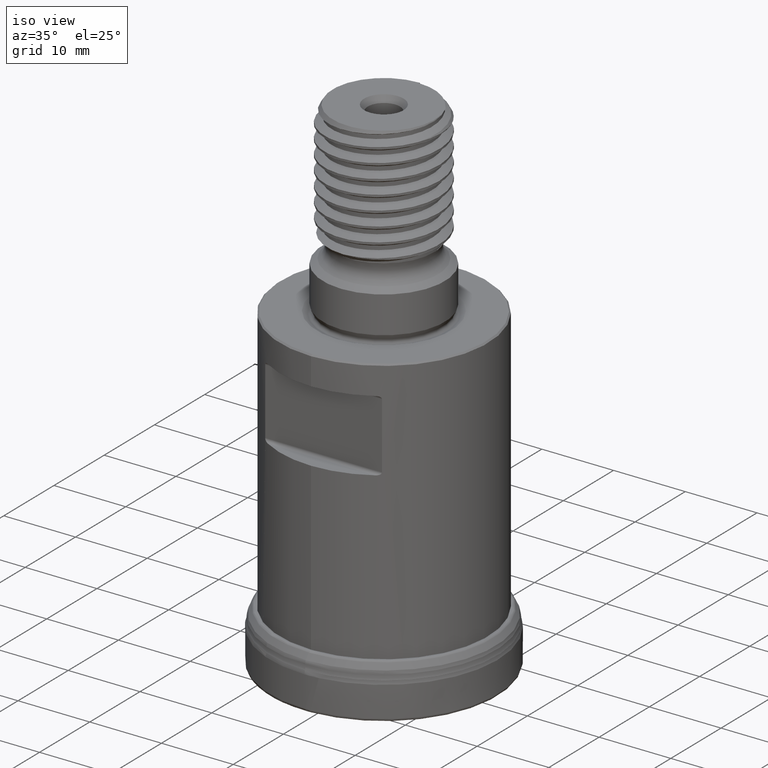
[diagram: clean part render]
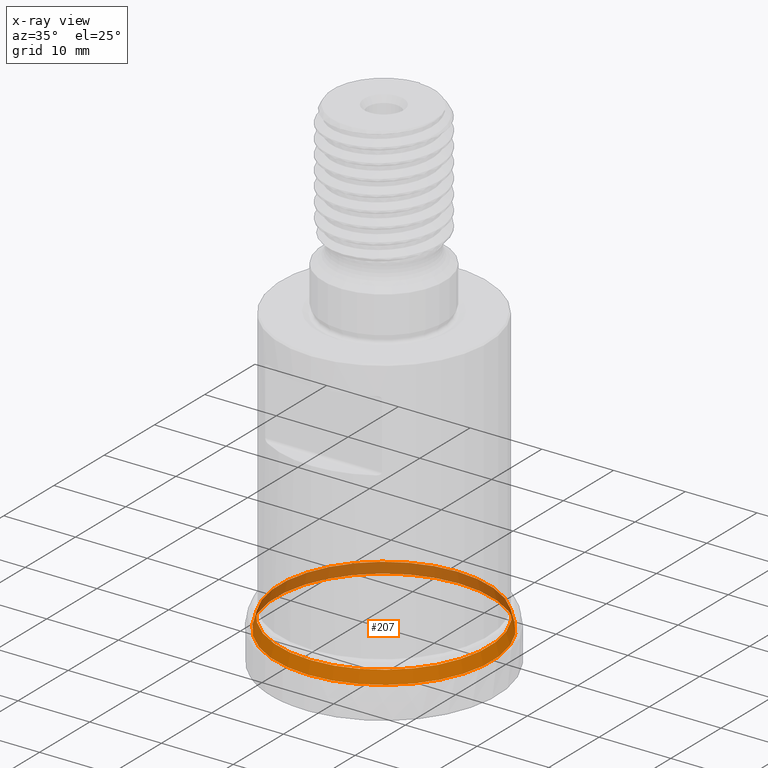
[diagram: x-ray — body ghosted, one internal face saturated and labeled with its STEP entity id]
A machine part, iso view, then the same camera in x-ray: the body is ghosted and one INTERNAL B-rep face — a face not visible from any outside direction — is saturated and labeled: STEP entity #207.
In plain terms, the highlighted conical surface has half-angle 15 deg.
Its self-contained STEP definition (entity closure, byte-faithful):
#181=CONICAL_SURFACE('',#993,14.5,15.);
#207=ADVANCED_FACE('',(#328,#329),#181,.T.);
#328=FACE_BOUND('',#422,.T.);
#329=FACE_BOUND('',#423,.T.);
#422=EDGE_LOOP('',(#545));
#423=EDGE_LOOP('',(#546));
#545=ORIENTED_EDGE('',*,*,#799,.T.);
#546=ORIENTED_EDGE('',*,*,#800,.T.);
#723=VERTEX_POINT('',#1702);
#724=VERTEX_POINT('',#1704);
#799=EDGE_CURVE('',#723,#723,#876,.T.);
#800=EDGE_CURVE('',#724,#724,#877,.T.);
#876=CIRCLE('',#991,14.6022225211328);
#877=CIRCLE('',#992,15.0569834767475);
#991=AXIS2_PLACEMENT_3D('',#1701,#1107,#1108);
#992=AXIS2_PLACEMENT_3D('',#1703,#1109,#1110);
#993=AXIS2_PLACEMENT_3D('',#1705,#1111,#1112);
#1107=DIRECTION('',(0.,-1.17145536458252E-15,-1.));
#1108=DIRECTION('',(0.,1.,-1.18798592027088E-15));
#1109=DIRECTION('',(0.,1.17145536458252E-15,1.));
#1110=DIRECTION('',(0.,-1.,1.15210558519623E-15));
#1111=DIRECTION('',(0.,-1.17145536458252E-15,-1.));
#1112=DIRECTION('',(0.,1.,-1.32661123080522E-15));
#1701=CARTESIAN_POINT('',(0.,7.03244128981093E-15,6.00316623443618));
#1702=CARTESIAN_POINT('',(0.,14.6022225211328,6.00316623443616));
#1703=CARTESIAN_POINT('',(0.,5.04425779791841E-15,4.30597524278362));
#1704=CARTESIAN_POINT('',(0.,-15.0569834767475,4.30597524278364));
#1705=CARTESIAN_POINT('',(0.,7.47935109265701E-15,6.38466587698154));